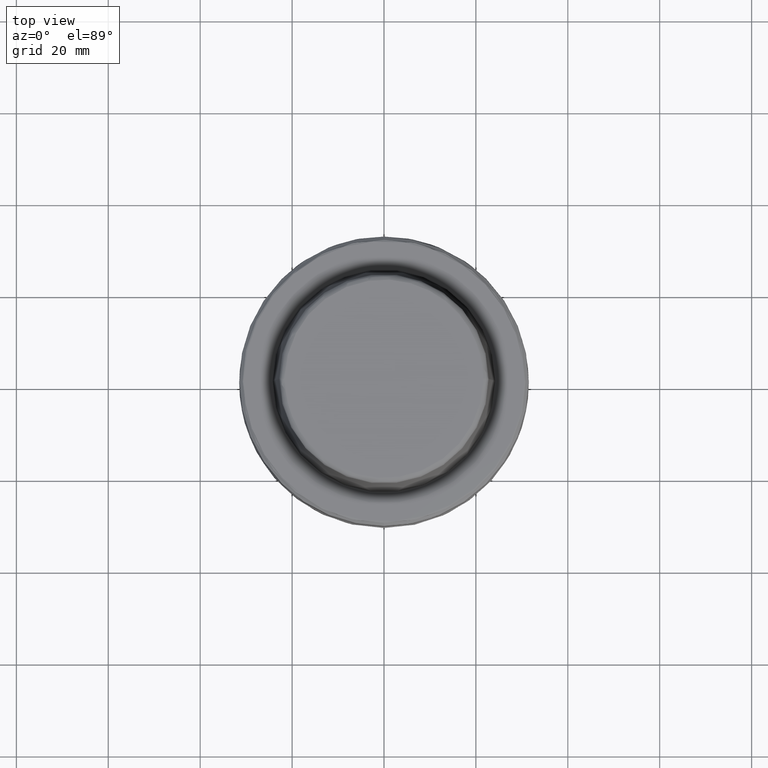
[diagram: clean part render]
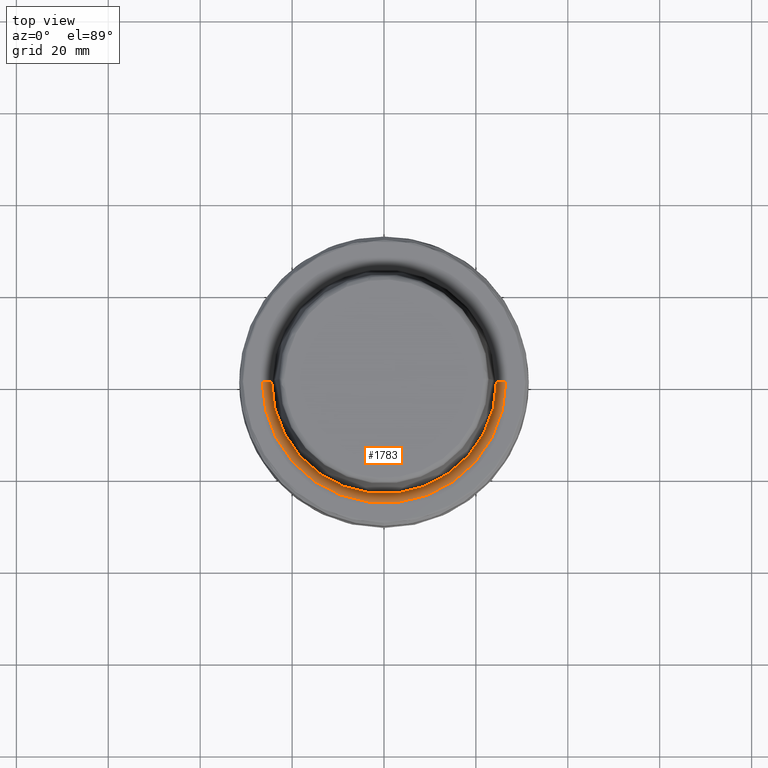
[diagram: same view with one face highlighted and labeled with its STEP entity id]
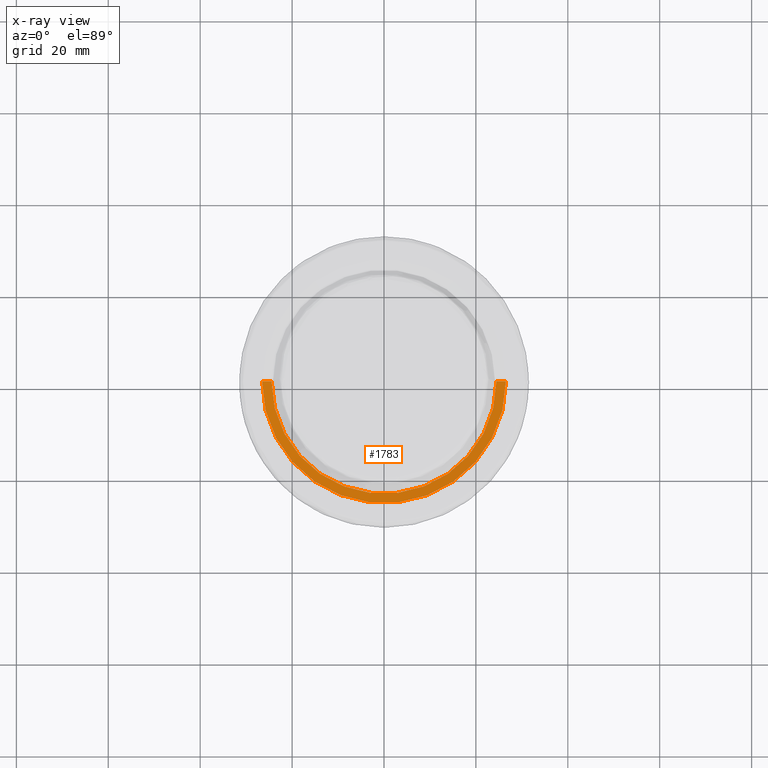
[diagram: x-ray of the same camera — body ghosted, the highlighted face saturated]
A machine part, top view. The second image highlights one B-rep face of the part: STEP entity #1783.
The next image is the same camera in x-ray: the body ghosted, the highlighted face saturated — about 0% of this face is hidden behind the body in this view.
In plain terms, the highlighted conical surface has half-angle 80 deg.
Its self-contained STEP definition (entity closure, byte-faithful):
#150 = LINE ( 'NONE', #2574, #2244 ) ;
#246 = CARTESIAN_POINT ( 'NONE',  ( 24.47682408877312100, 0.0000000000000000000, -0.3611486741952509800 ) ) ;
#314 = EDGE_CURVE ( 'NONE', #3269, #2247, #2581, .T. ) ;
#357 = AXIS2_PLACEMENT_3D ( 'NONE', #2850, #587, #2147 ) ;
#486 = ORIENTED_EDGE ( 'NONE', *, *, #1878, .T. ) ;
#502 = CARTESIAN_POINT ( 'NONE',  ( 0.0000000000000000000, 0.0000000000000000000, -0.3611486739999447700 ) ) ;
#587 = DIRECTION ( 'NONE',  ( 0.0000000000000000000, -0.0000000000000000000, 1.000000000000000000 ) ) ;
#711 = CARTESIAN_POINT ( 'NONE',  ( -24.47682408902667500, -7.530420809730855500E-009, -0.3611486741505421900 ) ) ;
#767 = DIRECTION ( 'NONE',  ( 1.000000000000000000, 0.0000000000000000000, -2.259047603386186600E-015 ) ) ;
#867 = ORIENTED_EDGE ( 'NONE', *, *, #996, .F. ) ;
#996 = EDGE_CURVE ( 'NONE', #1494, #2247, #2679, .T. ) ;
#1062 = ORIENTED_EDGE ( 'NONE', *, *, #1679, .T. ) ;
#1214 = EDGE_LOOP ( 'NONE', ( #1062, #486, #2688, #867 ) ) ;
#1255 = CARTESIAN_POINT ( 'NONE',  ( 24.47682408900000400, 0.0000000000000000000, -0.3611486740000000600 ) ) ;
#1335 = DIRECTION ( 'NONE',  ( -0.9848077530406941200, 1.206041662536783300E-016, 0.1736481775053776400 ) ) ;
#1494 = VERTEX_POINT ( 'NONE', #246 ) ;
#1507 = DIRECTION ( 'NONE',  ( 1.000000000000000000, 0.0000000000000000000, 0.0000000000000000000 ) ) ;
#1679 = EDGE_CURVE ( 'NONE', #1494, #2766, #2720, .T. ) ;
#1684 = AXIS2_PLACEMENT_3D ( 'NONE', #1764, #2969, #1507 ) ;
#1764 = CARTESIAN_POINT ( 'NONE',  ( 0.0000000000000000000, 0.0000000000000000000, -2.168404344971008900E-016 ) ) ;
#1783 = ADVANCED_FACE ( 'NONE', ( #1858 ), #3217, .F. ) ;
#1858 = FACE_OUTER_BOUND ( 'NONE', #1214, .T. ) ;
#1878 = EDGE_CURVE ( 'NONE', #2766, #3269, #150, .T. ) ;
#2147 = DIRECTION ( 'NONE',  ( 1.000000000000000000, 0.0000000000000000000, 0.0000000000000000000 ) ) ;
#2244 = VECTOR ( 'NONE', #1335, 1000.000000000000200 ) ;
#2247 = VERTEX_POINT ( 'NONE', #3194 ) ;
#2320 = DIRECTION ( 'NONE',  ( -0.0000000000000000000, -0.0000000000000000000, -1.000000000000000000 ) ) ;
#2574 = CARTESIAN_POINT ( 'NONE',  ( -24.47682408900000400, 2.997546427388668300E-015, -0.3611486740000000600 ) ) ;
#2581 = CIRCLE ( 'NONE', #1684, 26.52499999999999900 ) ;
#2668 = AXIS2_PLACEMENT_3D ( 'NONE', #502, #2320, #767 ) ;
#2679 = LINE ( 'NONE', #1255, #3008 ) ;
#2688 = ORIENTED_EDGE ( 'NONE', *, *, #314, .T. ) ;
#2707 = CARTESIAN_POINT ( 'NONE',  ( -26.52499999999999900, 3.248375634738354300E-015, -2.168404344971008900E-016 ) ) ;
#2720 = CIRCLE ( 'NONE', #2668, 24.47682408900000100 ) ;
#2766 = VERTEX_POINT ( 'NONE', #711 ) ;
#2833 = DIRECTION ( 'NONE',  ( 0.9848077530406941200, 0.0000000000000000000, 0.1736481775053776400 ) ) ;
#2850 = CARTESIAN_POINT ( 'NONE',  ( 0.0000000000000000000, 0.0000000000000000000, -0.3611486740000000600 ) ) ;
#2969 = DIRECTION ( 'NONE',  ( 0.0000000000000000000, -0.0000000000000000000, 1.000000000000000000 ) ) ;
#3008 = VECTOR ( 'NONE', #2833, 1000.000000000000200 ) ;
#3194 = CARTESIAN_POINT ( 'NONE',  ( 26.52499999999999900, 0.0000000000000000000, -2.168404344971008900E-016 ) ) ;
#3217 = CONICAL_SURFACE ( 'NONE', #357, 24.47682408900000400, 1.396263401759508600 ) ;
#3269 = VERTEX_POINT ( 'NONE', #2707 ) ;